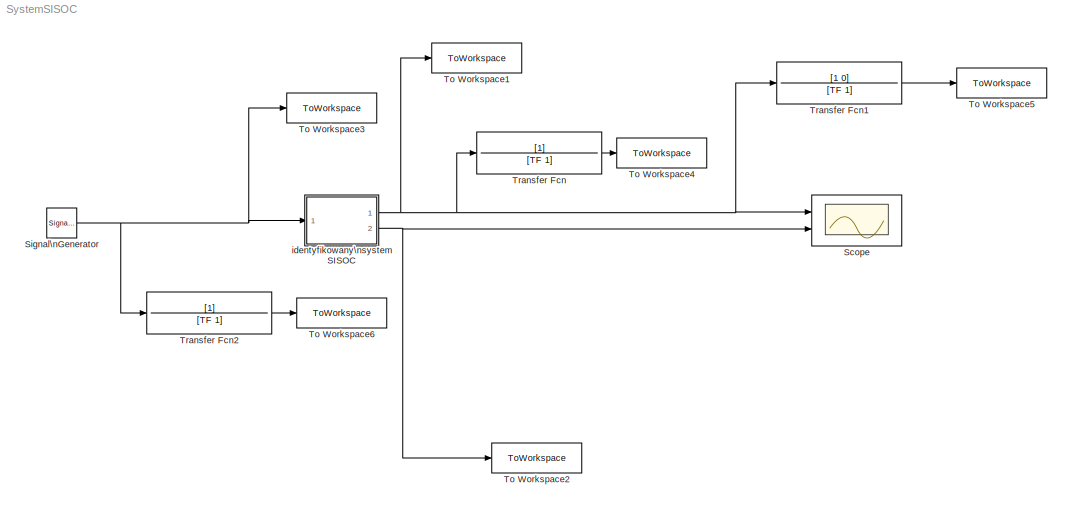
MODEL SystemSISOC
KIND model
BLOCK [Scope] Scope
  Floating = off
  NumInputPorts = 2
  Ports = [2]
  SID = 10
  ScopeSpecificationString = Simulink.scopes.TimeScopeBlockCfg('CurrentConfiguration', extmgr.ConfigurationSet(extmgr.Configuration('Core','General UI',true),extmgr.Configuration('Core','Source UI',true),extmgr.Configuration('Sources','WiredSimulink',true),extmgr.Configuration('Visuals','Time Domain',true,'SerializedDisplays',{struct('MinYLimReal','-2.76205','MaxYLimReal','2.74619','YLabelReal','','MinYLimMag','0.00000','MaxY...<+1410ch>
BLOCK [SignalGenerator] Signal\nGenerator
  Frequency = f
  Ports = [0, 1]
  SID = 9
  WaveForm = square
BLOCK [ToWorkspace] To Workspace1
  FixptAsFi = on
  MaxDataPoints = inf
  Ports = [1]
  SID = 11
  SampleTime = -1
  SaveFormat = Timeseries
  VariableName = y
BLOCK [ToWorkspace] To Workspace2
  FixptAsFi = on
  MaxDataPoints = inf
  Ports = [1]
  SID = 12
  SampleTime = -1
  SaveFormat = Timeseries
  VariableName = yo
BLOCK [ToWorkspace] To Workspace3
  FixptAsFi = on
  MaxDataPoints = inf
  Ports = [1]
  SID = 13
  SampleTime = -1
  SaveFormat = Timeseries
  VariableName = u
BLOCK [ToWorkspace] To Workspace4
  FixptAsFi = on
  MaxDataPoints = inf
  Ports = [1]
  SID = 16
  SampleTime = -1
  SaveFormat = Timeseries
  VariableName = yF
BLOCK [ToWorkspace] To Workspace5
  FixptAsFi = on
  MaxDataPoints = inf
  Ports = [1]
  SID = 18
  SampleTime = -1
  SaveFormat = Timeseries
  VariableName = ypF
BLOCK [ToWorkspace] To Workspace6
  FixptAsFi = on
  MaxDataPoints = inf
  Ports = [1]
  SID = 20
  SampleTime = -1
  SaveFormat = Timeseries
  VariableName = uF
BLOCK [TransferFcn] Transfer Fcn
  Denominator = [TF 1]
  SID = 14
BLOCK [TransferFcn] Transfer Fcn1
  Denominator = [TF 1]
  Numerator = [1 0]
  SID = 17
BLOCK [TransferFcn] Transfer Fcn2
  Denominator = [TF 1]
  SID = 19
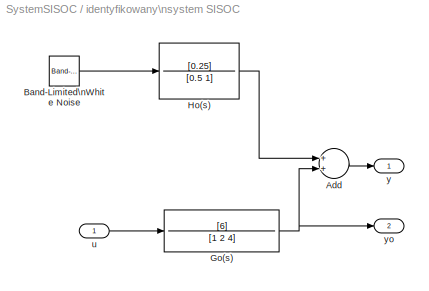
BLOCK [SubSystem] identyfikowany\nsystem SISOC
  Ports = [1, 2]
  RequestExecContextInheritance = off
  SID = 1
BLOCK [Sum] identyfikowany\nsystem SISOC/Add
  InputSameDT = off
  OutDataTypeStr = Inherit: Inherit via internal rule
  Ports = [2, 1]
  SID = 3
  SaturateOnIntegerOverflow = off
BLOCK [Reference] identyfikowany\nsystem SISOC/Band-Limited\nWhite Noise  REF=simulink/Sources/Band-Limited\nWhite Noise
  Cov = [sigma2e]
  Ports = [0, 1]
  SID = 4
  SourceBlock = simulink/Sources/Band-Limited\nWhite Noise
  SourceProductBaseCode = SL
  SourceProductName = Simulink
  SourceType = Band-Limited White Noise.
  Ts = Tp*0.1
  VectorParams1D = on
  seed = [2941]
BLOCK [TransferFcn] identyfikowany\nsystem SISOC/Go(s)
  Denominator = [1 2 4]
  Numerator = [6]
  SID = 5
BLOCK [TransferFcn] identyfikowany\nsystem SISOC/Ho(s)
  Denominator = [0.5 1]
  Numerator = [0.25]
  SID = 6
BLOCK [Inport] identyfikowany\nsystem SISOC/u
  IconDisplay = Port number
  SID = 2
BLOCK [Outport] identyfikowany\nsystem SISOC/y
  IconDisplay = Port number
  SID = 7
BLOCK [Outport] identyfikowany\nsystem SISOC/yo
  IconDisplay = Port number
  Port = 2
  SID = 8
NET Signal\nGenerator:1 -> To Workspace3:1, Transfer Fcn2:1, identyfikowany\nsystem SISOC:1
LINE Transfer Fcn1:1 -> To Workspace5:1
LINE Transfer Fcn2:1 -> To Workspace6:1
LINE Transfer Fcn:1 -> To Workspace4:1
LINE identyfikowany\nsystem SISOC/Add:1 -> identyfikowany\nsystem SISOC/y:1
LINE identyfikowany\nsystem SISOC/Band-Limited\nWhite Noise:1 -> identyfikowany\nsystem SISOC/Ho(s):1
NET identyfikowany\nsystem SISOC/Go(s):1 -> identyfikowany\nsystem SISOC/Add:2, identyfikowany\nsystem SISOC/yo:1
LINE identyfikowany\nsystem SISOC/Ho(s):1 -> identyfikowany\nsystem SISOC/Add:1
LINE identyfikowany\nsystem SISOC/u:1 -> identyfikowany\nsystem SISOC/Go(s):1
NET identyfikowany\nsystem SISOC:1 -> Scope:1, To Workspace1:1, Transfer Fcn1:1, Transfer Fcn:1
NET identyfikowany\nsystem SISOC:2 -> Scope:2, To Workspace2:1
note: NET lines group one-source signal fan-out (src -> all destinations, sorted); 1:1 wires keep LINE
